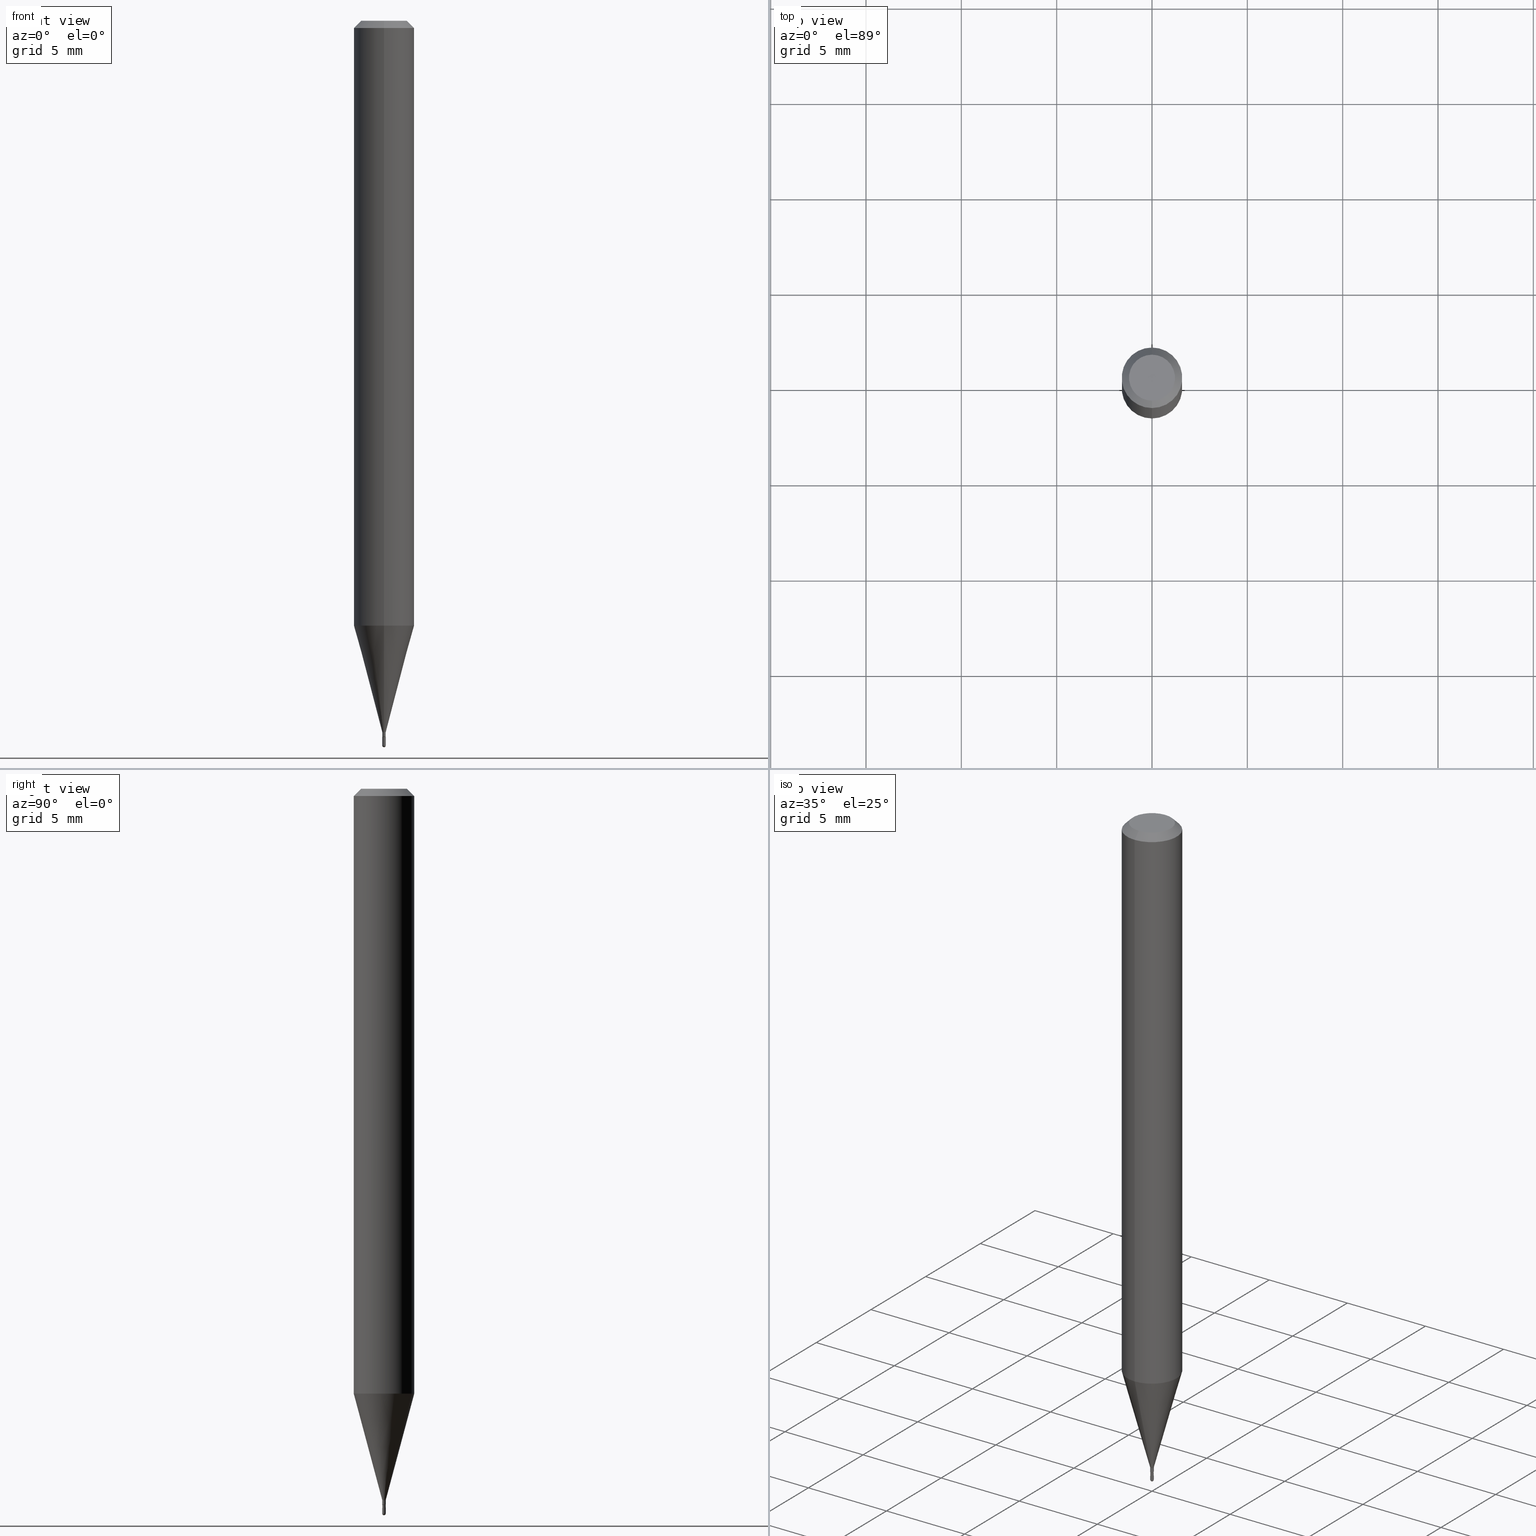
[diagram: canonical four-view strip — front | top / right | iso, engineering-drawing reading convention]
A machine part, canonical four-view strip (front | top / right | iso — engineering-drawing reading convention). The complete STEP part file that produces these views, byte-faithful:
ISO-10303-21;
HEADER;
FILE_DESCRIPTION (( 'STEP AP203' ),
    '1' );
FILE_NAME ('03105.STEP',
    '2024-03-08T18:11:56',
    ( '' ),
    ( '' ),
    'SwSTEP 2.0',
    'SolidWorks 2023',
    '' );
FILE_SCHEMA (( 'CONFIG_CONTROL_DESIGN' ));
ENDSEC;

DATA;
#1 = ORIENTED_EDGE ( 'NONE', *, *, #369, .T. ) ;
#2 = VERTEX_POINT ( 'NONE', #317 ) ;
#3 = DIRECTION ( 'NONE',  ( 7.105427357601001070E-15, 1.000000000000000000, 0.000000000000000000 ) ) ;
#4 = CIRCLE ( 'NONE', #296, 0.003500000000000000507 ) ;
#5 = VECTOR ( 'NONE', #292, 39.37007874015748143 ) ;
#6 = CC_DESIGN_APPROVAL ( #223, ( #15 ) ) ;
#7 = DIRECTION ( 'NONE',  ( 1.000000000000000000, -6.982962677686192558E-15, 0.000000000000000000 ) ) ;
#8 = DIRECTION ( 'NONE',  ( -6.982962677686265922E-15, -1.000000000000000000, 0.000000000000000000 ) ) ;
#9 = ADVANCED_FACE ( 'NONE', ( #486 ), #177, .F. ) ;
#10 = CLOSED_SHELL ( 'NONE', ( #270, #452, #240, #381, #113, #450, #333, #501, #9, #305, #324, #491 ) ) ;
#11 = CARTESIAN_POINT ( 'NONE',  ( 3.667754246975885842E-29, -5.237864947834270120E-15, -1.499999999999999778 ) ) ;
#12 = PRODUCT_RELATED_PRODUCT_CATEGORY ( 'detail', '', ( #171 ) ) ;
#13 = CONICAL_SURFACE ( 'NONE', #370, 0.06250000000000000000, 0.7853981633974483900 ) ;
#14 = FACE_OUTER_BOUND ( 'NONE', #253, .T. ) ;
#15 = PRODUCT_DEFINITION_FORMATION_WITH_SPECIFIED_SOURCE ( 'ANY', '', #171, .NOT_KNOWN. ) ;
#16 = APPLICATION_CONTEXT ( 'configuration controlled 3d designs of mechanical parts and assemblies' ) ;
#17 = DIRECTION ( 'NONE',  ( -2.445455208269520980E-29, 3.491500811832252799E-15, 1.000000000000000000 ) ) ;
#18 = DIRECTION ( 'NONE',  ( -2.445455208269520980E-29, 3.491500811832252799E-15, 1.000000000000000000 ) ) ;
#19 = CARTESIAN_POINT ( 'NONE',  ( 2.486899575160296776E-17, 0.003499999999999924612, -1.222025284141262155E-17 ) ) ;
#20 = VECTOR ( 'NONE', #152, 39.37007874015748143 ) ;
#21 = CARTESIAN_POINT ( 'NONE',  ( 3.668182812404223070E-31, -5.237251217748296269E-17, -0.01499999999999976179 ) ) ;
#22 = ADVANCED_FACE ( 'NONE', ( #62 ), #227, .T. ) ;
#23 = AXIS2_PLACEMENT_3D ( 'NONE', #221, #259, #25 ) ;
#24 = APPROVAL_PERSON_ORGANIZATION ( #172, #135, #355 ) ;
#25 = DIRECTION ( 'NONE',  ( -6.982962677686266711E-15, -1.000000000000000000, 3.491500811832253587E-15 ) ) ;
#26 = DIRECTION ( 'NONE',  ( -6.982962677686265133E-15, -1.000000000000000000, 0.000000000000000000 ) ) ;
#27 = VECTOR ( 'NONE', #65, 39.37007874015748143 ) ;
#28 = AXIS2_PLACEMENT_3D ( 'NONE', #213, #430, #351 ) ;
#29 = EDGE_CURVE ( 'NONE', #438, #163, #330, .T. ) ;
#30 = DIRECTION ( 'NONE',  ( -6.982962677686265922E-15, -1.000000000000000000, 4.370956789862821150E-15 ) ) ;
#31 = FACE_OUTER_BOUND ( 'NONE', #417, .T. ) ;
#32 = LENGTH_MEASURE_WITH_UNIT ( LENGTH_MEASURE( 0.02539999999999999897 ), #66 );
#33 = EDGE_CURVE ( 'NONE', #2, #44, #405, .T. ) ;
#34 = VECTOR ( 'NONE', #446, 39.37007874015748854 ) ;
#35 = APPROVAL_DATE_TIME ( #470, #485 ) ;
#36 = ORIENTED_EDGE ( 'NONE', *, *, #493, .T. ) ;
#37 = ORIENTED_EDGE ( 'NONE', *, *, #148, .T. ) ;
#38 = CARTESIAN_POINT ( 'NONE',  ( 3.659344760254844264E-29, -5.225430449958468947E-15, -1.496499999999999941 ) ) ;
#39 = EDGE_CURVE ( 'NONE', #280, #457, #404, .T. ) ;
#40 = PERSON_AND_ORGANIZATION ( #482, #312 ) ;
#41 = ORIENTED_EDGE ( 'NONE', *, *, #49, .F. ) ;
#42 = CARTESIAN_POINT ( 'NONE',  ( 2.309263891223915123E-17, 0.002999999999994836658, -1.479000000000000092 ) ) ;
#43 = SECURITY_CLASSIFICATION_LEVEL ( 'unclassified' ) ;
#44 = VERTEX_POINT ( 'NONE', #59 ) ;
#45 = EDGE_CURVE ( 'NONE', #457, #241, #47, .T. ) ;
#46 = DIRECTION ( 'NONE',  ( -2.445455208269520980E-29, 3.491500811832252799E-15, 1.000000000000000000 ) ) ;
#47 = CIRCLE ( 'NONE', #319, 0.003499999999999924179 ) ;
#48 = AXIS2_PLACEMENT_3D ( 'NONE', #354, #122, #132 ) ;
#49 = EDGE_CURVE ( 'NONE', #2, #163, #137, .T. ) ;
#50 = CARTESIAN_POINT ( 'NONE',  ( 3.616848364347817323E-29, -5.163900900149012660E-15, -1.479000000000000092 ) ) ;
#51 = APPLICATION_PROTOCOL_DEFINITION ( 'international standard', 'config_control_design', 1994, #483 ) ;
#52 = DIRECTION ( 'NONE',  ( -2.445468806185136597E-29, 3.491481338843145583E-15, 1.000000000000000000 ) ) ;
#53 = DIRECTION ( 'NONE',  ( -2.445455208269520980E-29, 3.491500811832252799E-15, 1.000000000000000000 ) ) ;
#54 = VERTEX_POINT ( 'NONE', #239 ) ;
#55 = AXIS2_PLACEMENT_3D ( 'NONE', #322, #466, #433 ) ;
#56 = CIRCLE ( 'NONE', #263, 0.06250000000000000000 ) ;
#57 = CARTESIAN_POINT ( 'NONE',  ( 3.668182812404223070E-31, -5.237251217748296269E-17, -0.01499999999999976179 ) ) ;
#58 = EDGE_CURVE ( 'NONE', #457, #218, #504, .T. ) ;
#59 = CARTESIAN_POINT ( 'NONE',  ( -2.444036937186505510E-17, -0.003500000000005185595, -1.496499999999999941 ) ) ;
#60 = CARTESIAN_POINT ( 'NONE',  ( -4.364351673553916201E-16, -0.06250000000000000000, 2.182188007395157999E-16 ) ) ;
#61 = FACE_OUTER_BOUND ( 'NONE', #460, .T. ) ;
#62 = FACE_OUTER_BOUND ( 'NONE', #469, .T. ) ;
#63 = CARTESIAN_POINT ( 'NONE',  ( 3.616828253030621651E-29, -5.163929700699901388E-15, -1.479000000000000092 ) ) ;
#64 = AXIS2_PLACEMENT_3D ( 'NONE', #347, #153, #459 ) ;
#65 = DIRECTION ( 'NONE',  ( -2.445455208269520699E-29, 3.491500811832253193E-15, 1.000000000000000000 ) ) ;
#66 =( LENGTH_UNIT ( ) NAMED_UNIT ( * ) SI_UNIT ( $, .METRE. ) );
#67 = CARTESIAN_POINT ( 'NONE',  ( 0.000000000000000000, 0.000000000000000000, 0.000000000000000000 ) ) ;
#68 = CARTESIAN_POINT ( 'NONE',  ( 0.000000000000000000, 0.000000000000000000, 0.000000000000000000 ) ) ;
#69 = VERTEX_POINT ( 'NONE', #255 ) ;
#70 = CIRCLE ( 'NONE', #441, 0.04749999999999999362 ) ;
#71 = EDGE_CURVE ( 'NONE', #54, #176, #85, .T. ) ;
#72 =( NAMED_UNIT ( * ) SI_UNIT ( $, .STERADIAN. ) SOLID_ANGLE_UNIT ( ) );
#73 = EDGE_LOOP ( 'NONE', ( #222, #145, #332, #231 ) ) ;
#74 = ORIENTED_EDGE ( 'NONE', *, *, #186, .F. ) ;
#75 = MANIFOLD_SOLID_BREP ( 'Body-Move/Copy2[2]', #10 ) ;
#76 = ORIENTED_EDGE ( 'NONE', *, *, #170, .T. ) ;
#77 = CARTESIAN_POINT ( 'NONE',  ( -2.444036937190140433E-17, -0.003499999999999924612, 1.222025284141262155E-17 ) ) ;
#78 = APPROVAL_STATUS ( 'not_yet_approved' ) ;
#79 = ORIENTED_EDGE ( 'NONE', *, *, #369, .F. ) ;
#80 = LINE ( 'NONE', #77, #290 ) ;
#81 = CARTESIAN_POINT ( 'NONE',  ( 3.659644068456056966E-29, -5.225001823578766863E-15, -1.496499999999999941 ) ) ;
#82 = ADVANCED_FACE ( 'NONE', ( #329 ), #178, .T. ) ;
#83 = PRODUCT_DEFINITION_SHAPE ( 'NONE', 'NONE',  #164 ) ;
#84 = DIRECTION ( 'NONE',  ( -2.445455208269520980E-29, 3.491500811832252799E-15, 1.000000000000000000 ) ) ;
#85 = CIRCLE ( 'NONE', #109, 0.003000000000000000496 ) ;
#86 = CONICAL_SURFACE ( 'NONE', #48, 0.003499999999999924179, 0.2617993877991506291 ) ;
#87 = APPROVAL_PERSON_ORGANIZATION ( #326, #485, #440 ) ;
#88 = CALENDAR_DATE ( 2024, 8, 3 ) ;
#89 = DIRECTION ( 'NONE',  ( -2.445468806185136597E-29, 3.491481338843145583E-15, 1.000000000000000000 ) ) ;
#90 = CYLINDRICAL_SURFACE ( 'NONE', #310, 0.06250000000000000000 ) ;
#91 = LINE ( 'NONE', #408, #5 ) ;
#92 = ORIENTED_EDGE ( 'NONE', *, *, #71, .T. ) ;
#93 = DIRECTION ( 'NONE',  ( -6.982962677686265133E-15, -1.000000000000000000, 0.000000000000000000 ) ) ;
#94 = CIRCLE ( 'NONE', #166, 0.003500000000000000507 ) ;
#95 = AXIS2_PLACEMENT_3D ( 'NONE', #81, #248, #7 ) ;
#96 = DIRECTION ( 'NONE',  ( -2.445455208269520139E-29, 3.491500811832253193E-15, 1.000000000000000000 ) ) ;
#97 = CARTESIAN_POINT ( 'NONE',  ( 3.659344760254844264E-29, -5.225430449958468947E-15, -1.496499999999999941 ) ) ;
#98 = EDGE_CURVE ( 'NONE', #315, #175, #94, .T. ) ;
#99 = EDGE_CURVE ( 'NONE', #175, #2, #4, .T. ) ;
#100 = DIRECTION ( 'NONE',  ( 6.982962677686265922E-15, 1.000000000000000000, -3.483106191921935554E-15 ) ) ;
#101 = EDGE_CURVE ( 'NONE', #69, #204, #70, .T. ) ;
#102 = VECTOR ( 'NONE', #282, 39.37007874015748143 ) ;
#103 = CONICAL_SURFACE ( 'NONE', #64, 0.003000000000000000496, 0.7853981633974739252 ) ;
#104 = FACE_OUTER_BOUND ( 'NONE', #207, .T. ) ;
#105 = FACE_OUTER_BOUND ( 'NONE', #388, .T. ) ;
#106 = EDGE_LOOP ( 'NONE', ( #472, #37, #509, #212 ) ) ;
#107 = ADVANCED_FACE ( 'NONE', ( #289 ), #126, .T. ) ;
#108 = EDGE_LOOP ( 'NONE', ( #362, #217, #380, #427 ) ) ;
#109 = AXIS2_PLACEMENT_3D ( 'NONE', #481, #475, #8 ) ;
#110 = AXIS2_PLACEMENT_3D ( 'NONE', #395, #46, #169 ) ;
#111 = EDGE_CURVE ( 'NONE', #112, #44, #138, .T. ) ;
#112 = VERTEX_POINT ( 'NONE', #11 ) ;
#113 = ADVANCED_FACE ( 'NONE', ( #400 ), #86, .T. ) ;
#114 = CARTESIAN_POINT ( 'NONE',  ( 0.000000000000000000, 0.000000000000000000, 0.000000000000000000 ) ) ;
#115 = PERSON_AND_ORGANIZATION ( #482, #312 ) ;
#116 = CARTESIAN_POINT ( 'NONE',  ( 3.659344760254844264E-29, -5.225430449958468947E-15, -1.496499999999999941 ) ) ;
#117 = AXIS2_PLACEMENT_3D ( 'NONE', #378, #303, #453 ) ;
#118 = EDGE_CURVE ( 'NONE', #163, #438, #487, .T. ) ;
#119 = AXIS2_PLACEMENT_3D ( 'NONE', #432, #281, #424 ) ;
#120 = CC_DESIGN_APPROVAL ( #485, ( #164 ) ) ;
#121 = ORIENTED_EDGE ( 'NONE', *, *, #118, .F. ) ;
#122 = DIRECTION ( 'NONE',  ( -2.445455208269520980E-29, 3.491500811832252799E-15, 1.000000000000000000 ) ) ;
#123 = CC_DESIGN_PERSON_AND_ORGANIZATION_ASSIGNMENT ( #512, #251, ( #15 ) ) ;
#124 = ADVANCED_BREP_SHAPE_REPRESENTATION ( '03105', ( #244, #75, #507 ), #478 ) ;
#125 = EDGE_LOOP ( 'NONE', ( #236, #474, #391, #348 ) ) ;
#126 = CYLINDRICAL_SURFACE ( 'NONE', #397, 0.003500000000000000507 ) ;
#127 = EDGE_CURVE ( 'NONE', #176, #54, #447, .T. ) ;
#128 = COORDINATED_UNIVERSAL_TIME_OFFSET ( 5, 0, .BEHIND. ) ;
#129 = ORIENTED_EDGE ( 'NONE', *, *, #29, .F. ) ;
#130 = DIRECTION ( 'NONE',  ( -2.445468806185136597E-29, 3.491481338843145583E-15, 1.000000000000000000 ) ) ;
#131 = VECTOR ( 'NONE', #298, 39.37007874015748143 ) ;
#132 = DIRECTION ( 'NONE',  ( -6.982962677686265133E-15, -1.000000000000000000, 0.000000000000000000 ) ) ;
#133 = EDGE_CURVE ( 'NONE', #345, #241, #80, .T. ) ;
#134 = DIRECTION ( 'NONE',  ( -6.982962677686265922E-15, -1.000000000000000000, 0.000000000000000000 ) ) ;
#135 = APPROVAL ( #473, 'UNSPECIFIED' ) ;
#136 = ORIENTED_EDGE ( 'NONE', *, *, #71, .F. ) ;
#137 = LINE ( 'NONE', #295, #102 ) ;
#138 = CIRCLE ( 'NONE', #228, 0.003499999999999920276 ) ;
#139 = AXIS2_PLACEMENT_3D ( 'NONE', #182, #53, #181 ) ;
#140 = FACE_OUTER_BOUND ( 'NONE', #73, .T. ) ;
#141 = CARTESIAN_POINT ( 'NONE',  ( 3.592373700947925645E-29, -5.129014692581578904E-15, -1.468999999999999861 ) ) ;
#142 = EDGE_CURVE ( 'NONE', #173, #422, #398, .T. ) ;
#143 = DIRECTION ( 'NONE',  ( 2.445455208269520139E-29, -3.491500811832253193E-15, -1.000000000000000000 ) ) ;
#144 = DIRECTION ( 'NONE',  ( -6.982962677686265922E-15, -1.000000000000000000, 3.491500811832252799E-15 ) ) ;
#145 = ORIENTED_EDGE ( 'NONE', *, *, #208, .T. ) ;
#146 = FACE_OUTER_BOUND ( 'NONE', #503, .T. ) ;
#147 = CONICAL_SURFACE ( 'NONE', #117, 0.06250000000000000000, 0.7853981633974483900 ) ;
#148 = EDGE_CURVE ( 'NONE', #69, #173, #511, .T. ) ;
#149 = DIRECTION ( 'NONE',  ( -2.445455208269520980E-29, 3.491500811832252799E-15, 1.000000000000000000 ) ) ;
#150 = DIRECTION ( 'NONE',  ( -6.982962677686265922E-15, -1.000000000000000000, 4.370956789862821150E-15 ) ) ;
#151 = ORIENTED_EDGE ( 'NONE', *, *, #309, .T. ) ;
#152 = DIRECTION ( 'NONE',  ( 1.839019923739602682E-15, 0.2588190451025252914, 0.9659258262890670910 ) ) ;
#153 = DIRECTION ( 'NONE',  ( -2.445455208269520980E-29, 3.491500811832252799E-15, 1.000000000000000000 ) ) ;
#154 = ORIENTED_EDGE ( 'NONE', *, *, #201, .F. ) ;
#155 = AXIS2_PLACEMENT_3D ( 'NONE', #38, #174, #246 ) ;
#156 = CIRCLE ( 'NONE', #23, 0.04749999999999999362 ) ;
#157 = CC_DESIGN_SECURITY_CLASSIFICATION ( #442, ( #15 ) ) ;
#158 = CARTESIAN_POINT ( 'NONE',  ( 2.486899575163888867E-17, 0.003499999999994795035, -1.468999999999999861 ) ) ;
#159 = APPROVAL_STATUS ( 'not_yet_approved' ) ;
#160 = ORIENTED_EDGE ( 'NONE', *, *, #29, .T. ) ;
#161 = ORIENTED_EDGE ( 'NONE', *, *, #188, .T. ) ;
#162 = CARTESIAN_POINT ( 'NONE',  ( -4.287811248607203282E-16, -0.06250000000000005551, -0.01499999999999954321 ) ) ;
#163 = VERTEX_POINT ( 'NONE', #464 ) ;
#164 = PRODUCT_DEFINITION ( 'UNKNOWN', '', #15, #505 ) ;
#165 = LINE ( 'NONE', #321, #338 ) ;
#166 = AXIS2_PLACEMENT_3D ( 'NONE', #436, #89, #356 ) ;
#167 = VECTOR ( 'NONE', #328, 39.37007874015748143 ) ;
#168 = LOCAL_TIME ( 13, 11, 56.00000000000000000, #426 ) ;
#169 = DIRECTION ( 'NONE',  ( -6.982962677686265133E-15, -1.000000000000000000, 0.000000000000000000 ) ) ;
#170 = EDGE_CURVE ( 'NONE', #112, #175, #376, .T. ) ;
#171 = PRODUCT ( '03105', '03105', '', ( #415 ) ) ;
#172 = PERSON_AND_ORGANIZATION ( #482, #312 ) ;
#173 = VERTEX_POINT ( 'NONE', #392 ) ;
#174 = DIRECTION ( 'NONE',  ( 1.000000000000000000, -6.982962677686265133E-15, 4.883557194083112340E-29 ) ) ;
#175 = VERTEX_POINT ( 'NONE', #471 ) ;
#176 = VERTEX_POINT ( 'NONE', #42 ) ;
#177 = PLANE ( 'NONE',  #412 ) ;
#178 = SPHERICAL_SURFACE ( 'NONE', #155, 0.003499999999999920276 ) ;
#179 = ORIENTED_EDGE ( 'NONE', *, *, #118, .T. ) ;
#180 = APPROVAL_PERSON_ORGANIZATION ( #390, #223, #286 ) ;
#181 = DIRECTION ( 'NONE',  ( -6.982962677686265922E-15, -1.000000000000000000, 0.000000000000000000 ) ) ;
#182 = CARTESIAN_POINT ( 'NONE',  ( 3.615605525426486626E-29, -5.162183950293985461E-15, -1.478500000000000147 ) ) ;
#183 = ORIENTED_EDGE ( 'NONE', *, *, #33, .T. ) ;
#184 = CARTESIAN_POINT ( 'NONE',  ( 0.000000000000000000, 0.000000000000000000, 0.000000000000000000 ) ) ;
#185 = AXIS2_PLACEMENT_3D ( 'NONE', #97, #367, #337 ) ;
#186 = EDGE_CURVE ( 'NONE', #54, #345, #205, .T. ) ;
#187 = PLANE ( 'NONE',  #283 ) ;
#188 = EDGE_CURVE ( 'NONE', #315, #438, #165, .T. ) ;
#189 = LINE ( 'NONE', #495, #458 ) ;
#190 = DIRECTION ( 'NONE',  ( 2.438088387897960049E-29, -3.491481338843145188E-15, -1.000000000000000000 ) ) ;
#191 = EDGE_CURVE ( 'NONE', #44, #315, #349, .T. ) ;
#192 = CC_DESIGN_PERSON_AND_ORGANIZATION_ASSIGNMENT ( #115, #358, ( #442 ) ) ;
#193 = AXIS2_PLACEMENT_3D ( 'NONE', #357, #366, #494 ) ;
#194 = AXIS2_PLACEMENT_3D ( 'NONE', #50, #52, #360 ) ;
#195 = PERSON_AND_ORGANIZATION_ROLE ( 'design_owner' ) ;
#196 = CARTESIAN_POINT ( 'NONE',  ( 3.053906478939076642E-29, -4.360217645540450292E-15, -1.248809002353436837 ) ) ;
#197 = ORIENTED_EDGE ( 'NONE', *, *, #211, .T. ) ;
#198 = EDGE_LOOP ( 'NONE', ( #216, #76, #245, #425 ) ) ;
#199 = ORIENTED_EDGE ( 'NONE', *, *, #188, .F. ) ;
#200 = CIRCLE ( 'NONE', #342, 0.06250000000000000000 ) ;
#201 = EDGE_CURVE ( 'NONE', #241, #457, #234, .T. ) ;
#202 = DIRECTION ( 'NONE',  ( -2.445455208269520699E-29, 3.491500811832253193E-15, 1.000000000000000000 ) ) ;
#203 = DATE_AND_TIME ( #463, #428 ) ;
#204 = VERTEX_POINT ( 'NONE', #489 ) ;
#205 = LINE ( 'NONE', #359, #167 ) ;
#206 = DIRECTION ( 'NONE',  ( -2.445468806185136597E-29, 3.491481338843145583E-15, 1.000000000000000000 ) ) ;
#207 = EDGE_LOOP ( 'NONE', ( #92, #353, #79, #74 ) ) ;
#208 = EDGE_CURVE ( 'NONE', #218, #422, #91, .T. ) ;
#209 = DIRECTION ( 'NONE',  ( 1.000000000000000000, -7.105427357601001070E-15, 4.926315508542082329E-29 ) ) ;
#210 = AXIS2_PLACEMENT_3D ( 'NONE', #364, #17, #374 ) ;
#211 = EDGE_CURVE ( 'NONE', #327, #173, #449, .T. ) ;
#212 = ORIENTED_EDGE ( 'NONE', *, *, #288, .F. ) ;
#213 = CARTESIAN_POINT ( 'NONE',  ( 3.668182812404223070E-31, -5.237251217748296269E-17, -0.01499999999999976179 ) ) ;
#214 = APPROVAL_DATE_TIME ( #435, #135 ) ;
#215 = DIRECTION ( 'NONE',  ( -2.445468806185136597E-29, 3.491481338843145583E-15, 1.000000000000000000 ) ) ;
#216 = ORIENTED_EDGE ( 'NONE', *, *, #111, .F. ) ;
#217 = ORIENTED_EDGE ( 'NONE', *, *, #111, .T. ) ;
#218 = VERTEX_POINT ( 'NONE', #336 ) ;
#219 = CARTESIAN_POINT ( 'NONE',  ( 2.486899575163905199E-17, 0.003499999999994752534, -1.478500000000000147 ) ) ;
#220 = LOCAL_TIME ( 13, 11, 56.00000000000000000, #323 ) ;
#221 = CARTESIAN_POINT ( 'NONE',  ( -5.856610105478164244E-45, 8.361780198923321254E-31, 2.394895676548695195E-16 ) ) ;
#222 = ORIENTED_EDGE ( 'NONE', *, *, #443, .T. ) ;
#223 = APPROVAL ( #159, 'UNSPECIFIED' ) ;
#224 = DIRECTION ( 'NONE',  ( -2.445455208269520980E-29, 3.491500811832252799E-15, 1.000000000000000000 ) ) ;
#225 = DIMENSIONAL_EXPONENTS ( 1.000000000000000000, 0.000000000000000000, 0.000000000000000000, 0.000000000000000000, 0.000000000000000000, 0.000000000000000000, 0.000000000000000000 ) ;
#226 = CARTESIAN_POINT ( 'NONE',  ( 0.000000000000000000, 0.000000000000000000, 0.000000000000000000 ) ) ;
#227 = CYLINDRICAL_SURFACE ( 'NONE', #268, 0.003500000000000000507 ) ;
#228 = AXIS2_PLACEMENT_3D ( 'NONE', #467, #325, #287 ) ;
#229 = CIRCLE ( 'NONE', #139, 0.003499999999999925046 ) ;
#230 = DIRECTION ( 'NONE',  ( -6.982962677686265922E-15, -1.000000000000000000, 0.000000000000000000 ) ) ;
#231 = ORIENTED_EDGE ( 'NONE', *, *, #211, .F. ) ;
#232 = CC_DESIGN_DATE_AND_TIME_ASSIGNMENT ( #352, #461, ( #442 ) ) ;
#233 = PERSON_AND_ORGANIZATION ( #482, #312 ) ;
#234 = CIRCLE ( 'NONE', #110, 0.003499999999999924179 ) ;
#235 = DIRECTION ( 'NONE',  ( -2.445455208269520980E-29, 3.491500811832252799E-15, 1.000000000000000000 ) ) ;
#236 = ORIENTED_EDGE ( 'NONE', *, *, #387, .F. ) ;
#237 = DIRECTION ( 'NONE',  ( -1.000000000000000000, 6.982962677686265922E-15, -4.876176775795935793E-29 ) ) ;
#238 = ORIENTED_EDGE ( 'NONE', *, *, #191, .T. ) ;
#239 = CARTESIAN_POINT ( 'NONE',  ( -2.094888803302263345E-17, -0.003000000000005164334, -1.479000000000000092 ) ) ;
#240 = ADVANCED_FACE ( 'NONE', ( #448 ), #13, .T. ) ;
#241 = VERTEX_POINT ( 'NONE', #260 ) ;
#242 = CARTESIAN_POINT ( 'NONE',  ( 3.659644068456056966E-29, -5.225001823578766863E-15, -1.496499999999999941 ) ) ;
#243 = AXIS2_PLACEMENT_3D ( 'NONE', #68, #149, #379 ) ;
#244 = MANIFOLD_SOLID_BREP ( 'Body-Move/Copy2[1]', #375 ) ;
#245 = ORIENTED_EDGE ( 'NONE', *, *, #98, .F. ) ;
#246 = DIRECTION ( 'NONE',  ( -6.982962677686265133E-15, -1.000000000000000000, 0.000000000000000000 ) ) ;
#247 = ADVANCED_FACE ( 'NONE', ( #410 ), #368, .T. ) ;
#248 = DIRECTION ( 'NONE',  ( -2.445468806185136597E-29, 3.491481338843145583E-15, 1.000000000000000000 ) ) ;
#249 = COORDINATED_UNIVERSAL_TIME_OFFSET ( 5, 0, .BEHIND. ) ;
#250 = CARTESIAN_POINT ( 'NONE',  ( 0.000000000000000000, 0.000000000000000000, 0.000000000000000000 ) ) ;
#251 = PERSON_AND_ORGANIZATION_ROLE ( 'creator' ) ;
#252 = CARTESIAN_POINT ( 'NONE',  ( -5.856610105478164244E-45, 8.361780198923321254E-31, 2.394895676548695195E-16 ) ) ;
#253 = EDGE_LOOP ( 'NONE', ( #136, #365 ) ) ;
#254 = DIRECTION ( 'NONE',  ( -6.982962677686265922E-15, -1.000000000000000000, 3.491500811832252799E-15 ) ) ;
#255 = CARTESIAN_POINT ( 'NONE',  ( -3.773273898774340269E-16, -0.04749999999999999362, 4.053358562169015185E-16 ) ) ;
#256 = DIRECTION ( 'NONE',  ( -2.445455208269520980E-29, 3.491500811832252799E-15, 1.000000000000000000 ) ) ;
#257 = CC_DESIGN_PERSON_AND_ORGANIZATION_ASSIGNMENT ( #233, #195, ( #171 ) ) ;
#258 = AXIS2_PLACEMENT_3D ( 'NONE', #116, #209, #3 ) ;
#259 = DIRECTION ( 'NONE',  ( -2.445455208269520980E-29, 3.491500811832252799E-15, 1.000000000000000000 ) ) ;
#260 = CARTESIAN_POINT ( 'NONE',  ( -2.444036937186547418E-17, -0.003500000000005053322, -1.468999999999999861 ) ) ;
#261 = DIRECTION ( 'NONE',  ( 6.982962677686265922E-15, 1.000000000000000000, -3.491500811832253193E-15 ) ) ;
#262 = DIRECTION ( 'NONE',  ( -2.445455208269520980E-29, 3.491500811832252799E-15, 1.000000000000000000 ) ) ;
#263 = AXIS2_PLACEMENT_3D ( 'NONE', #21, #262, #294 ) ;
#264 = CARTESIAN_POINT ( 'NONE',  ( 2.344791028008661059E-16, 0.003499999999994795035, -1.468999999999999861 ) ) ;
#265 = EDGE_CURVE ( 'NONE', #422, #173, #56, .T. ) ;
#266 = CARTESIAN_POINT ( 'NONE',  ( 2.444036937193810177E-17, 0.003499999999994836668, -1.479000000000000092 ) ) ;
#267 = DIRECTION ( 'NONE',  ( -2.445455208269520980E-29, 3.491500811832252799E-15, 1.000000000000000000 ) ) ;
#268 = AXIS2_PLACEMENT_3D ( 'NONE', #114, #206, #276 ) ;
#269 =( NAMED_UNIT ( * ) PLANE_ANGLE_UNIT ( ) SI_UNIT ( $, .RADIAN. ) );
#270 = ADVANCED_FACE ( 'NONE', ( #61 ), #445, .T. ) ;
#271 = APPLICATION_PROTOCOL_DEFINITION ( 'international standard', 'config_control_design', 1994, #16 ) ;
#272 = ORIENTED_EDGE ( 'NONE', *, *, #493, .F. ) ;
#273 = ORIENTED_EDGE ( 'NONE', *, *, #265, .T. ) ;
#274 = APPROVAL_DATE_TIME ( #203, #223 ) ;
#275 = ORIENTED_EDGE ( 'NONE', *, *, #288, .T. ) ;
#276 = DIRECTION ( 'NONE',  ( 1.000000000000000000, -6.982962677686266711E-15, 4.876176775795935232E-29 ) ) ;
#277 = ORIENTED_EDGE ( 'NONE', *, *, #148, .F. ) ;
#278 = SHAPE_DEFINITION_REPRESENTATION ( #83, #124 ) ;
#279 = EDGE_LOOP ( 'NONE', ( #151, #468 ) ) ;
#280 = VERTEX_POINT ( 'NONE', #219 ) ;
#281 = DIRECTION ( 'NONE',  ( -2.445455208269520980E-29, 3.491500811832252799E-15, 1.000000000000000000 ) ) ;
#282 = DIRECTION ( 'NONE',  ( -2.445468806185136877E-29, 3.491481338843145188E-15, 1.000000000000000000 ) ) ;
#283 = AXIS2_PLACEMENT_3D ( 'NONE', #339, #96, #300 ) ;
#284 = CALENDAR_DATE ( 2024, 8, 3 ) ;
#285 = DIRECTION ( 'NONE',  ( -2.445468806185136877E-29, 3.491481338843145188E-15, 1.000000000000000000 ) ) ;
#286 = APPROVAL_ROLE ( '' ) ;
#287 = DIRECTION ( 'NONE',  ( -6.982962677686265922E-15, -1.000000000000000000, 0.000000000000000000 ) ) ;
#288 = EDGE_CURVE ( 'NONE', #204, #422, #189, .T. ) ;
#289 = FACE_OUTER_BOUND ( 'NONE', #420, .T. ) ;
#290 = VECTOR ( 'NONE', #202, 39.37007874015748143 ) ;
#291 = CARTESIAN_POINT ( 'NONE',  ( -4.364351673553611504E-16, -0.06250000000000435763, -1.248809002353436615 ) ) ;
#292 = DIRECTION ( 'NONE',  ( -2.445455208269520699E-29, 3.491500811832253193E-15, 1.000000000000000000 ) ) ;
#293 = EDGE_CURVE ( 'NONE', #241, #327, #340, .T. ) ;
#294 = DIRECTION ( 'NONE',  ( -6.982962677686265922E-15, -1.000000000000000000, 3.483106191921935554E-15 ) ) ;
#295 = CARTESIAN_POINT ( 'NONE',  ( -0.003500000000000000507, 2.486899575160351010E-17, -1.721627281589217151E-31 ) ) ;
#296 = AXIS2_PLACEMENT_3D ( 'NONE', #242, #130, #477 ) ;
#297 = VECTOR ( 'NONE', #316, 39.37007874015748143 ) ;
#298 = DIRECTION ( 'NONE',  ( -2.445455208269520699E-29, 3.491500811832253193E-15, 1.000000000000000000 ) ) ;
#299 = DIRECTION ( 'NONE',  ( -2.445455208269520980E-29, 3.491500811832252799E-15, 1.000000000000000000 ) ) ;
#300 = DIRECTION ( 'NONE',  ( -6.982962677686265922E-15, -1.000000000000000000, 3.491500811832253193E-15 ) ) ;
#301 = DIRECTION ( 'NONE',  ( 0.000000000000000000, 0.000000000000000000, 1.000000000000000000 ) ) ;
#302 = AXIS2_PLACEMENT_3D ( 'NONE', #377, #235, #30 ) ;
#303 = DIRECTION ( 'NONE',  ( 2.445455208269520980E-29, -3.491500811832252799E-15, -1.000000000000000000 ) ) ;
#304 = CARTESIAN_POINT ( 'NONE',  ( 2.131628207283917344E-17, 0.002999999999994836658, -1.479000000000000092 ) ) ;
#305 = ADVANCED_FACE ( 'NONE', ( #14 ), #187, .F. ) ;
#306 = CC_DESIGN_DATE_AND_TIME_ASSIGNMENT ( #313, #396, ( #164 ) ) ;
#307 = CARTESIAN_POINT ( 'NONE',  ( 0.003500000000000000507, -5.188341269520914499E-15, -1.479000000000000092 ) ) ;
#308 = ORIENTED_EDGE ( 'NONE', *, *, #58, .T. ) ;
#309 = EDGE_CURVE ( 'NONE', #204, #69, #156, .T. ) ;
#310 = AXIS2_PLACEMENT_3D ( 'NONE', #184, #224, #254 ) ;
#311 = ORIENTED_EDGE ( 'NONE', *, *, #201, .T. ) ;
#312 = ORGANIZATION ( 'UNSPECIFIED', 'UNSPECIFIED', '' ) ;
#313 = DATE_AND_TIME ( #284, #414 ) ;
#314 = COORDINATED_UNIVERSAL_TIME_OFFSET ( 5, 0, .BEHIND. ) ;
#315 = VERTEX_POINT ( 'NONE', #372 ) ;
#316 = DIRECTION ( 'NONE',  ( -4.851104656540964275E-15, -0.7071067811865500152, -0.7071067811865450192 ) ) ;
#317 = CARTESIAN_POINT ( 'NONE',  ( -0.003500000000000000507, -5.169582366112287022E-15, -1.496499999999999941 ) ) ;
#318 = CALENDAR_DATE ( 2024, 8, 3 ) ;
#319 = AXIS2_PLACEMENT_3D ( 'NONE', #141, #299, #93 ) ;
#320 = ORIENTED_EDGE ( 'NONE', *, *, #293, .T. ) ;
#321 = CARTESIAN_POINT ( 'NONE',  ( 0.003500000000000000507, -2.444036937190193743E-17, 1.706661871528577676E-31 ) ) ;
#322 = CARTESIAN_POINT ( 'NONE',  ( 3.616848364347817323E-29, -5.163900900149012660E-15, -1.479000000000000092 ) ) ;
#323 = COORDINATED_UNIVERSAL_TIME_OFFSET ( 5, 0, .BEHIND. ) ;
#324 = ADVANCED_FACE ( 'NONE', ( #411 ), #476, .T. ) ;
#325 = DIRECTION ( 'NONE',  ( -1.000000000000000000, 6.982962677686265922E-15, -4.883557194083112340E-29 ) ) ;
#326 = PERSON_AND_ORGANIZATION ( #482, #312 ) ;
#327 = VERTEX_POINT ( 'NONE', #291 ) ;
#328 = DIRECTION ( 'NONE',  ( -4.937700262164674260E-15, -0.7071067811865632269, 0.7071067811865319186 ) ) ;
#329 = FACE_OUTER_BOUND ( 'NONE', #108, .T. ) ;
#330 = CIRCLE ( 'NONE', #55, 0.003500000000000000507 ) ;
#331 = CONICAL_SURFACE ( 'NONE', #490, 0.003499999999999924179, 0.2617993877991506291 ) ;
#332 = ORIENTED_EDGE ( 'NONE', *, *, #142, .F. ) ;
#333 = ADVANCED_FACE ( 'NONE', ( #444 ), #90, .T. ) ;
#334 = CARTESIAN_POINT ( 'NONE',  ( 3.615605525426486626E-29, -5.162183950293985461E-15, -1.478500000000000147 ) ) ;
#335 = ORIENTED_EDGE ( 'NONE', *, *, #133, .F. ) ;
#336 = CARTESIAN_POINT ( 'NONE',  ( 4.440892098500930859E-16, 0.06249999999999564237, -1.248809002353437059 ) ) ;
#337 = DIRECTION ( 'NONE',  ( -6.982962677686265133E-15, -1.000000000000000000, 0.000000000000000000 ) ) ;
#338 = VECTOR ( 'NONE', #285, 39.37007874015748143 ) ;
#339 = CARTESIAN_POINT ( 'NONE',  ( 3.616828253030621651E-29, -5.163929700699901388E-15, -1.479000000000000092 ) ) ;
#340 = LINE ( 'NONE', #480, #34 ) ;
#341 = PLANE ( 'NONE',  #382 ) ;
#342 = AXIS2_PLACEMENT_3D ( 'NONE', #196, #267, #150 ) ;
#343 = AXIS2_PLACEMENT_3D ( 'NONE', #63, #256, #230 ) ;
#344 = LINE ( 'NONE', #304, #413 ) ;
#345 = VERTEX_POINT ( 'NONE', #403 ) ;
#346 = ORIENTED_EDGE ( 'NONE', *, *, #208, .F. ) ;
#347 = CARTESIAN_POINT ( 'NONE',  ( 3.616828253030621651E-29, -5.163929700699901388E-15, -1.479000000000000092 ) ) ;
#348 = ORIENTED_EDGE ( 'NONE', *, *, #363, .F. ) ;
#349 = CIRCLE ( 'NONE', #95, 0.003500000000000000507 ) ;
#350 = ORIENTED_EDGE ( 'NONE', *, *, #39, .T. ) ;
#351 = DIRECTION ( 'NONE',  ( -6.982962677686265922E-15, -1.000000000000000000, 3.483106191921935554E-15 ) ) ;
#352 = DATE_AND_TIME ( #318, #168 ) ;
#353 = ORIENTED_EDGE ( 'NONE', *, *, #387, .T. ) ;
#354 = CARTESIAN_POINT ( 'NONE',  ( 3.592373700947925645E-29, -5.129014692581578904E-15, -1.468999999999999861 ) ) ;
#355 = APPROVAL_ROLE ( '' ) ;
#356 = DIRECTION ( 'NONE',  ( 1.000000000000000000, -6.982962677686192558E-15, 0.000000000000000000 ) ) ;
#357 = CARTESIAN_POINT ( 'NONE',  ( 3.659644068456056966E-29, -5.225001823578766863E-15, -1.496499999999999941 ) ) ;
#358 = PERSON_AND_ORGANIZATION_ROLE ( 'classification_officer' ) ;
#359 = CARTESIAN_POINT ( 'NONE',  ( -2.094888803302263345E-17, -0.003000000000005164334, -1.479000000000000092 ) ) ;
#360 = DIRECTION ( 'NONE',  ( 1.000000000000000000, -6.982962677686192558E-15, 0.000000000000000000 ) ) ;
#361 = DIRECTION ( 'NONE',  ( 4.937700262164548042E-15, 0.7071067811865451302, -0.7071067811865499042 ) ) ;
#362 = ORIENTED_EDGE ( 'NONE', *, *, #170, .F. ) ;
#363 = EDGE_CURVE ( 'NONE', #280, #345, #229, .T. ) ;
#364 = CARTESIAN_POINT ( 'NONE',  ( 0.000000000000000000, 0.000000000000000000, 0.000000000000000000 ) ) ;
#365 = ORIENTED_EDGE ( 'NONE', *, *, #127, .F. ) ;
#366 = DIRECTION ( 'NONE',  ( -2.445468806185136597E-29, 3.491481338843145583E-15, 1.000000000000000000 ) ) ;
#367 = DIRECTION ( 'NONE',  ( 1.000000000000000000, -6.982962677686265133E-15, 4.883557194083112340E-29 ) ) ;
#368 = SPHERICAL_SURFACE ( 'NONE', #185, 0.003499999999999920276 ) ;
#369 = EDGE_CURVE ( 'NONE', #345, #280, #506, .T. ) ;
#370 = AXIS2_PLACEMENT_3D ( 'NONE', #57, #484, #100 ) ;
#371 = CC_DESIGN_APPROVAL ( #135, ( #442 ) ) ;
#372 = CARTESIAN_POINT ( 'NONE',  ( 0.003500000000000000507, -5.218891731235791995E-15, -1.496499999999999941 ) ) ;
#373 = DIRECTION ( 'NONE',  ( 1.000000000000000000, 0.000000000000000000, 0.000000000000000000 ) ) ;
#374 = DIRECTION ( 'NONE',  ( -6.982962677686265922E-15, -1.000000000000000000, 3.491500811832252799E-15 ) ) ;
#375 = CLOSED_SHELL ( 'NONE', ( #22, #247, #488, #82, #107 ) ) ;
#376 = CIRCLE ( 'NONE', #258, 0.003499999999999920276 ) ;
#377 = CARTESIAN_POINT ( 'NONE',  ( 3.053906478939076642E-29, -4.360217645540450292E-15, -1.248809002353436837 ) ) ;
#378 = CARTESIAN_POINT ( 'NONE',  ( 3.668182812404223070E-31, -5.237251217748296269E-17, -0.01499999999999976179 ) ) ;
#379 = DIRECTION ( 'NONE',  ( -6.982962677686265922E-15, -1.000000000000000000, 3.491500811832252799E-15 ) ) ;
#380 = ORIENTED_EDGE ( 'NONE', *, *, #33, .F. ) ;
#381 = ADVANCED_FACE ( 'NONE', ( #140 ), #406, .T. ) ;
#382 = AXIS2_PLACEMENT_3D ( 'NONE', #266, #190, #237 ) ;
#383 = PERSON_AND_ORGANIZATION_ROLE ( 'creator' ) ;
#384 = ORIENTED_EDGE ( 'NONE', *, *, #293, .F. ) ;
#385 = ORIENTED_EDGE ( 'NONE', *, *, #49, .T. ) ;
#386 = DIRECTION ( 'NONE',  ( -6.982962677686266711E-15, -1.000000000000000000, 3.491500811832253587E-15 ) ) ;
#387 = EDGE_CURVE ( 'NONE', #176, #280, #344, .T. ) ;
#388 = EDGE_LOOP ( 'NONE', ( #510, #439, #320, #272 ) ) ;
#389 = EDGE_LOOP ( 'NONE', ( #399, #409, #462, #500 ) ) ;
#390 = PERSON_AND_ORGANIZATION ( #482, #312 ) ;
#391 = ORIENTED_EDGE ( 'NONE', *, *, #186, .T. ) ;
#392 = CARTESIAN_POINT ( 'NONE',  ( -4.364351673553912750E-16, -0.06250000000000005551, -0.01499999999999954321 ) ) ;
#393 = CC_DESIGN_PERSON_AND_ORGANIZATION_ASSIGNMENT ( #401, #431, ( #15 ) ) ;
#394 = CC_DESIGN_PERSON_AND_ORGANIZATION_ASSIGNMENT ( #40, #383, ( #164 ) ) ;
#395 = CARTESIAN_POINT ( 'NONE',  ( 3.592373700947925645E-29, -5.129014692581578904E-15, -1.468999999999999861 ) ) ;
#396 = DATE_TIME_ROLE ( 'creation_date' ) ;
#397 = AXIS2_PLACEMENT_3D ( 'NONE', #250, #215, #402 ) ;
#398 = CIRCLE ( 'NONE', #28, 0.06250000000000000000 ) ;
#399 = ORIENTED_EDGE ( 'NONE', *, *, #39, .F. ) ;
#400 = FACE_OUTER_BOUND ( 'NONE', #407, .T. ) ;
#401 = PERSON_AND_ORGANIZATION ( #482, #312 ) ;
#402 = DIRECTION ( 'NONE',  ( 1.000000000000000000, -6.982962677686266711E-15, 4.876176775795935232E-29 ) ) ;
#403 = CARTESIAN_POINT ( 'NONE',  ( -2.444036937186532627E-17, -0.003500000000005097558, -1.478500000000000147 ) ) ;
#404 = LINE ( 'NONE', #19, #27 ) ;
#405 = CIRCLE ( 'NONE', #193, 0.003500000000000000507 ) ;
#406 = CYLINDRICAL_SURFACE ( 'NONE', #210, 0.06250000000000000000 ) ;
#407 = EDGE_LOOP ( 'NONE', ( #311, #308, #454, #384 ) ) ;
#408 = CARTESIAN_POINT ( 'NONE',  ( 4.440892098500625669E-16, 0.06250000000000000000, -2.182188007395157999E-16 ) ) ;
#409 = ORIENTED_EDGE ( 'NONE', *, *, #363, .T. ) ;
#410 = FACE_OUTER_BOUND ( 'NONE', #198, .T. ) ;
#411 = FACE_OUTER_BOUND ( 'NONE', #125, .T. ) ;
#412 = AXIS2_PLACEMENT_3D ( 'NONE', #465, #143, #261 ) ;
#413 = VECTOR ( 'NONE', #421, 39.37007874015748143 ) ;
#414 = LOCAL_TIME ( 13, 11, 56.00000000000000000, #249 ) ;
#415 = MECHANICAL_CONTEXT ( 'NONE', #16, 'mechanical' ) ;
#416 = CARTESIAN_POINT ( 'NONE',  ( 4.440892098500932831E-16, 0.06249999999999995143, -0.01499999999999997863 ) ) ;
#417 = EDGE_LOOP ( 'NONE', ( #277, #429, #275, #273 ) ) ;
#418 = AXIS2_PLACEMENT_3D ( 'NONE', #334, #18, #134 ) ;
#419 = LOCAL_TIME ( 13, 11, 56.00000000000000000, #128 ) ;
#420 = EDGE_LOOP ( 'NONE', ( #41, #183, #238, #161, #121 ) ) ;
#421 = DIRECTION ( 'NONE',  ( 5.024295867788190974E-15, 0.7071067811865681119, 0.7071067811865270336 ) ) ;
#422 = VERTEX_POINT ( 'NONE', #416 ) ;
#423 = CALENDAR_DATE ( 2024, 8, 3 ) ;
#424 = DIRECTION ( 'NONE',  ( -6.982962677686265922E-15, -1.000000000000000000, 0.000000000000000000 ) ) ;
#425 = ORIENTED_EDGE ( 'NONE', *, *, #191, .F. ) ;
#426 = COORDINATED_UNIVERSAL_TIME_OFFSET ( 5, 0, .BEHIND. ) ;
#427 = ORIENTED_EDGE ( 'NONE', *, *, #99, .F. ) ;
#428 = LOCAL_TIME ( 13, 11, 56.00000000000000000, #314 ) ;
#429 = ORIENTED_EDGE ( 'NONE', *, *, #309, .F. ) ;
#430 = DIRECTION ( 'NONE',  ( -2.445455208269520980E-29, 3.491500811832252799E-15, 1.000000000000000000 ) ) ;
#431 = PERSON_AND_ORGANIZATION_ROLE ( 'design_supplier' ) ;
#432 = CARTESIAN_POINT ( 'NONE',  ( 3.616828253030621651E-29, -5.163929700699901388E-15, -1.479000000000000092 ) ) ;
#433 = DIRECTION ( 'NONE',  ( 1.000000000000000000, -6.982962677686192558E-15, 0.000000000000000000 ) ) ;
#434 = ORIENTED_EDGE ( 'NONE', *, *, #99, .T. ) ;
#435 = DATE_AND_TIME ( #423, #419 ) ;
#436 = CARTESIAN_POINT ( 'NONE',  ( 3.659644068456056966E-29, -5.225001823578766863E-15, -1.496499999999999941 ) ) ;
#437 = UNCERTAINTY_MEASURE_WITH_UNIT (LENGTH_MEASURE( 1.000000000000000082E-05 ), #456, 'distance_accuracy_value', 'NONE');
#438 = VERTEX_POINT ( 'NONE', #307 ) ;
#439 = ORIENTED_EDGE ( 'NONE', *, *, #45, .T. ) ;
#440 = APPROVAL_ROLE ( '' ) ;
#441 = AXIS2_PLACEMENT_3D ( 'NONE', #252, #84, #386 ) ;
#442 = SECURITY_CLASSIFICATION ( '', '', #43 ) ;
#443 = EDGE_CURVE ( 'NONE', #327, #218, #200, .T. ) ;
#444 = FACE_OUTER_BOUND ( 'NONE', #498, .T. ) ;
#445 = CYLINDRICAL_SURFACE ( 'NONE', #497, 0.003499999999999924612 ) ;
#446 = DIRECTION ( 'NONE',  ( -1.807323732225332900E-15, -0.2588190451025185190, 0.9659258262890689783 ) ) ;
#447 = CIRCLE ( 'NONE', #119, 0.003000000000000000496 ) ;
#448 = FACE_OUTER_BOUND ( 'NONE', #106, .T. ) ;
#449 = LINE ( 'NONE', #60, #131 ) ;
#450 = ADVANCED_FACE ( 'NONE', ( #105 ), #331, .T. ) ;
#451 = CIRCLE ( 'NONE', #302, 0.06250000000000000000 ) ;
#452 = ADVANCED_FACE ( 'NONE', ( #104 ), #103, .T. ) ;
#453 = DIRECTION ( 'NONE',  ( 6.982962677686265922E-15, 1.000000000000000000, -3.483106191921935554E-15 ) ) ;
#454 = ORIENTED_EDGE ( 'NONE', *, *, #443, .F. ) ;
#455 = CYLINDRICAL_SURFACE ( 'NONE', #243, 0.003499999999999924612 ) ;
#456 =( CONVERSION_BASED_UNIT ( 'INCH', #32 ) LENGTH_UNIT ( ) NAMED_UNIT ( #225 ) );
#457 = VERTEX_POINT ( 'NONE', #264 ) ;
#458 = VECTOR ( 'NONE', #361, 39.37007874015748143 ) ;
#459 = DIRECTION ( 'NONE',  ( -6.982962677686265922E-15, -1.000000000000000000, 0.000000000000000000 ) ) ;
#460 = EDGE_LOOP ( 'NONE', ( #1, #350, #154, #335 ) ) ;
#461 = DATE_TIME_ROLE ( 'classification_date' ) ;
#462 = ORIENTED_EDGE ( 'NONE', *, *, #133, .T. ) ;
#463 = CALENDAR_DATE ( 2024, 8, 3 ) ;
#464 = CARTESIAN_POINT ( 'NONE',  ( -0.003500000000000000507, -5.169582366112287022E-15, -1.479000000000000092 ) ) ;
#465 = CARTESIAN_POINT ( 'NONE',  ( 3.316907271900976096E-16, 0.04749999999999999362, -4.610150473459723931E-17 ) ) ;
#466 = DIRECTION ( 'NONE',  ( -2.445468806185136597E-29, 3.491481338843145583E-15, 1.000000000000000000 ) ) ;
#467 = CARTESIAN_POINT ( 'NONE',  ( 3.659344760254844264E-29, -5.225430449958468947E-15, -1.496499999999999941 ) ) ;
#468 = ORIENTED_EDGE ( 'NONE', *, *, #101, .T. ) ;
#469 = EDGE_LOOP ( 'NONE', ( #434, #385, #129, #199, #508 ) ) ;
#470 = DATE_AND_TIME ( #88, #220 ) ;
#471 = CARTESIAN_POINT ( 'NONE',  ( 2.486899575163981620E-17, 0.003499999999994735187, -1.496499999999999941 ) ) ;
#472 = ORIENTED_EDGE ( 'NONE', *, *, #101, .F. ) ;
#473 = APPROVAL_STATUS ( 'not_yet_approved' ) ;
#474 = ORIENTED_EDGE ( 'NONE', *, *, #127, .T. ) ;
#475 = DIRECTION ( 'NONE',  ( -2.445455208269520980E-29, 3.491500811832252799E-15, 1.000000000000000000 ) ) ;
#476 = CONICAL_SURFACE ( 'NONE', #343, 0.003000000000000000496, 0.7853981633974739252 ) ;
#477 = DIRECTION ( 'NONE',  ( 1.000000000000000000, -6.982962677686192558E-15, 0.000000000000000000 ) ) ;
#478 =( GEOMETRIC_REPRESENTATION_CONTEXT ( 3 ) GLOBAL_UNCERTAINTY_ASSIGNED_CONTEXT ( ( #437 ) ) GLOBAL_UNIT_ASSIGNED_CONTEXT ( ( #456, #269, #72 ) ) REPRESENTATION_CONTEXT ( 'NONE', 'WORKASPACE' ) );
#479 = ORIENTED_EDGE ( 'NONE', *, *, #265, .F. ) ;
#480 = CARTESIAN_POINT ( 'NONE',  ( -2.444036937186547418E-17, -0.003500000000005053322, -1.468999999999999861 ) ) ;
#481 = CARTESIAN_POINT ( 'NONE',  ( 3.616828253030621651E-29, -5.163929700699901388E-15, -1.479000000000000092 ) ) ;
#482 = PERSON ( 'UNSPECIFIED', 'UNSPECIFIED', 'UNSPECIFIED', ('UNSPECIFIED'), ('UNSPECIFIED'), ('UNSPECIFIED') ) ;
#483 = APPLICATION_CONTEXT ( 'configuration controlled 3d designs of mechanical parts and assemblies' ) ;
#484 = DIRECTION ( 'NONE',  ( 2.445455208269520980E-29, -3.491500811832252799E-15, -1.000000000000000000 ) ) ;
#485 = APPROVAL ( #78, 'UNSPECIFIED' ) ;
#486 = FACE_OUTER_BOUND ( 'NONE', #279, .T. ) ;
#487 = CIRCLE ( 'NONE', #194, 0.003500000000000000507 ) ;
#488 = ADVANCED_FACE ( 'NONE', ( #146 ), #341, .F. ) ;
#489 = CARTESIAN_POINT ( 'NONE',  ( 3.840629472727447874E-16, 0.04749999999999999362, 7.364327909283752044E-17 ) ) ;
#490 = AXIS2_PLACEMENT_3D ( 'NONE', #502, #499, #26 ) ;
#491 = ADVANCED_FACE ( 'NONE', ( #496 ), #455, .T. ) ;
#492 = DIRECTION ( 'NONE',  ( -2.445455208269520980E-29, 3.491500811832252799E-15, 1.000000000000000000 ) ) ;
#493 = EDGE_CURVE ( 'NONE', #218, #327, #451, .T. ) ;
#494 = DIRECTION ( 'NONE',  ( 1.000000000000000000, -6.982962677686192558E-15, 0.000000000000000000 ) ) ;
#495 = CARTESIAN_POINT ( 'NONE',  ( 4.364351673553919652E-16, 0.06249999999999995143, -0.01499999999999997863 ) ) ;
#496 = FACE_OUTER_BOUND ( 'NONE', #389, .T. ) ;
#497 = AXIS2_PLACEMENT_3D ( 'NONE', #226, #492, #144 ) ;
#498 = EDGE_LOOP ( 'NONE', ( #346, #36, #197, #479 ) ) ;
#499 = DIRECTION ( 'NONE',  ( -2.445455208269520980E-29, 3.491500811832252799E-15, 1.000000000000000000 ) ) ;
#500 = ORIENTED_EDGE ( 'NONE', *, *, #45, .F. ) ;
#501 = ADVANCED_FACE ( 'NONE', ( #31 ), #147, .T. ) ;
#502 = CARTESIAN_POINT ( 'NONE',  ( 3.592373700947925645E-29, -5.129014692581578904E-15, -1.468999999999999861 ) ) ;
#503 = EDGE_LOOP ( 'NONE', ( #160, #179 ) ) ;
#504 = LINE ( 'NONE', #158, #20 ) ;
#505 = DESIGN_CONTEXT ( 'detailed design', #483, 'design' ) ;
#506 = CIRCLE ( 'NONE', #418, 0.003499999999999925046 ) ;
#507 = AXIS2_PLACEMENT_3D ( 'NONE', #67, #301, #373 ) ;
#508 = ORIENTED_EDGE ( 'NONE', *, *, #98, .T. ) ;
#509 = ORIENTED_EDGE ( 'NONE', *, *, #142, .T. ) ;
#510 = ORIENTED_EDGE ( 'NONE', *, *, #58, .F. ) ;
#511 = LINE ( 'NONE', #162, #297 ) ;
#512 = PERSON_AND_ORGANIZATION ( #482, #312 ) ;
ENDSEC;
END-ISO-10303-21;
